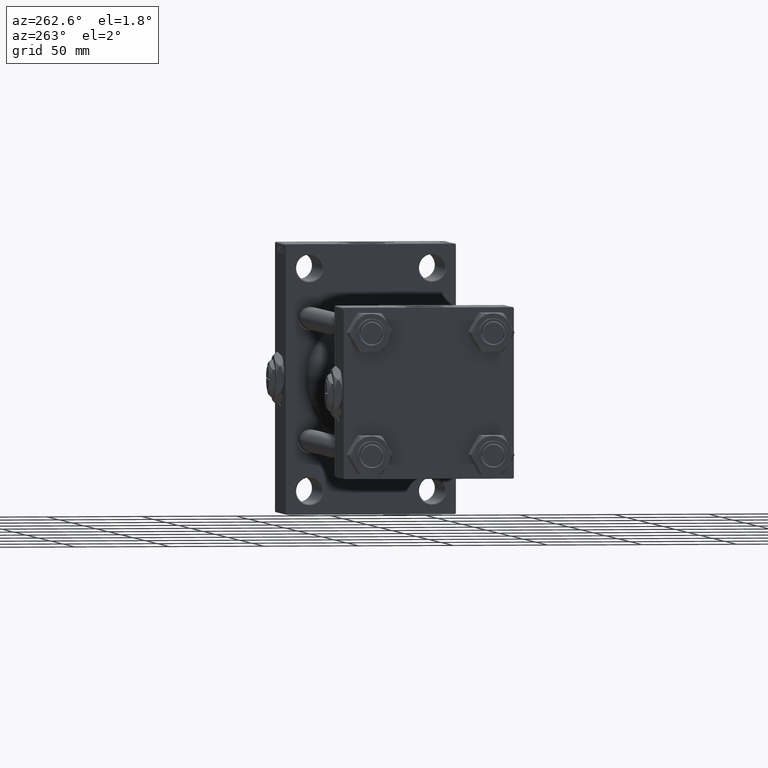
[diagram: clean part render]
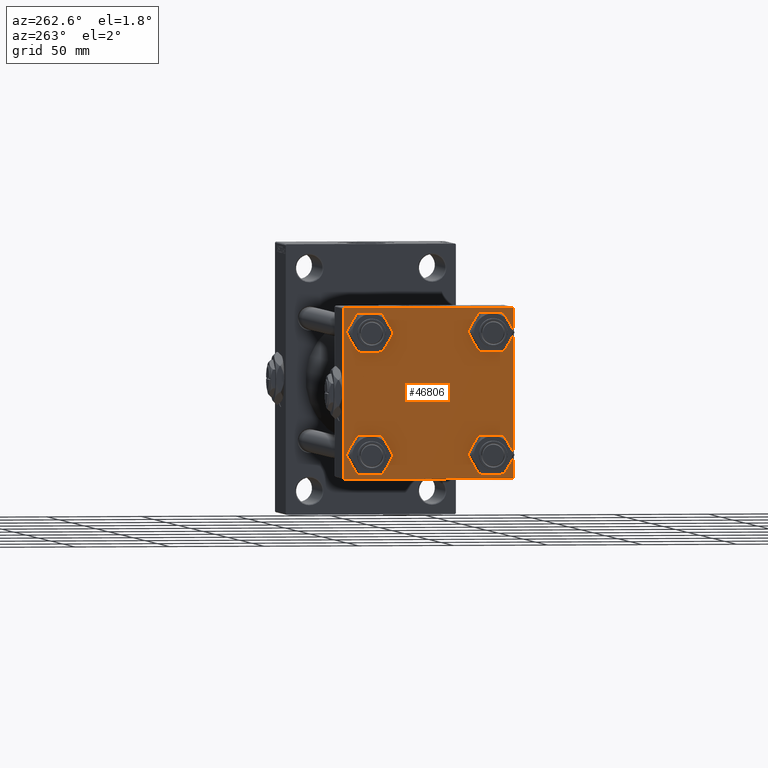
[diagram: same view with one face highlighted and labeled with its STEP entity id]
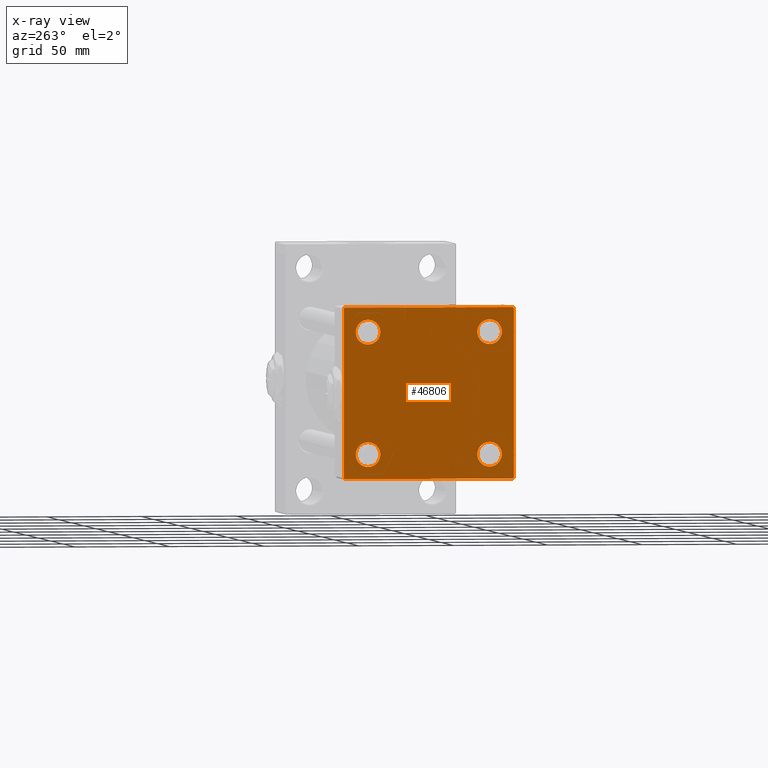
[diagram: x-ray of the same camera — body ghosted, the highlighted face saturated]
A machine part, auxiliary view. The second image highlights one B-rep face of the part: STEP entity #46806.
The next image is the same camera in x-ray: the body ghosted, the highlighted face saturated — about 0% of this face is hidden behind the body in this view.
In plain terms, the highlighted planar face has unit normal (-1, 0, 0).
Its self-contained STEP definition (entity closure, byte-faithful):
#22 = DIRECTION ( 'NONE',  ( 1.000000000000000000, -0.000000000000000000, 0.000000000000000000 ) ) ;
#142 = CARTESIAN_POINT ( 'NONE',  ( 0.000000000000000000, 32.14999999999999147, -38.64999999999998437 ) ) ;
#525 = LINE ( 'NONE', #31147, #46910 ) ;
#1086 = ORIENTED_EDGE ( 'NONE', *, *, #22798, .T. ) ;
#1949 = DIRECTION ( 'NONE',  ( -1.000000000000000000, 0.000000000000000000, -0.000000000000000000 ) ) ;
#2435 = CARTESIAN_POINT ( 'NONE',  ( 0.000000000000000000, -32.14999999999997726, -38.64999999999999147 ) ) ;
#2499 = EDGE_CURVE ( 'NONE', #23122, #22329, #7401, .T. ) ;
#3068 = EDGE_LOOP ( 'NONE', ( #13501, #12628 ) ) ;
#3329 = CARTESIAN_POINT ( 'NONE',  ( 0.000000000000000000, 44.99999999999998579, 45.00000000000001421 ) ) ;
#3406 = LINE ( 'NONE', #18608, #28569 ) ;
#3565 = ORIENTED_EDGE ( 'NONE', *, *, #5016, .T. ) ;
#4237 = CIRCLE ( 'NONE', #26550, 6.499999999999977796 ) ;
#4275 = CIRCLE ( 'NONE', #31336, 6.499999999999977796 ) ;
#4891 = CARTESIAN_POINT ( 'NONE',  ( 0.000000000000000000, -32.14999999999997726, 25.64999999999999147 ) ) ;
#5016 = EDGE_CURVE ( 'NONE', #22686, #20820, #4237, .T. ) ;
#5029 = AXIS2_PLACEMENT_3D ( 'NONE', #14021, #35958, #25243 ) ;
#5524 = CARTESIAN_POINT ( 'NONE',  ( 0.000000000000000000, 44.49999999999998579, -44.99999999999998579 ) ) ;
#6220 = DIRECTION ( 'NONE',  ( 1.000000000000000000, -0.000000000000000000, 0.000000000000000000 ) ) ;
#6262 = ORIENTED_EDGE ( 'NONE', *, *, #12572, .T. ) ;
#6744 = CARTESIAN_POINT ( 'NONE',  ( 0.000000000000000000, -32.14999999999997726, 32.15000000000001279 ) ) ;
#6845 = EDGE_CURVE ( 'NONE', #27381, #43476, #4275, .T. ) ;
#7401 = LINE ( 'NONE', #45518, #47920 ) ;
#7722 = CARTESIAN_POINT ( 'NONE',  ( 0.000000000000000000, -44.49999999999995737, 45.00000000000000000 ) ) ;
#7909 = CARTESIAN_POINT ( 'NONE',  ( 0.000000000000000000, 44.74999999999998579, -44.74999999999998579 ) ) ;
#9051 = CIRCLE ( 'NONE', #36891, 6.500000000000019540 ) ;
#9105 = CARTESIAN_POINT ( 'NONE',  ( 0.000000000000000000, 32.14999999999999147, -25.65000000000002700 ) ) ;
#9174 = FACE_BOUND ( 'NONE', #3068, .T. ) ;
#9508 = ORIENTED_EDGE ( 'NONE', *, *, #48211, .F. ) ;
#9717 = DIRECTION ( 'NONE',  ( 0.000000000000000000, 0.000000000000000000, 1.000000000000000000 ) ) ;
#10545 = AXIS2_PLACEMENT_3D ( 'NONE', #42581, #28368, #46312 ) ;
#10889 = LINE ( 'NONE', #25354, #18550 ) ;
#10974 = CIRCLE ( 'NONE', #42029, 6.499999999999977796 ) ;
#11165 = CARTESIAN_POINT ( 'NONE',  ( 0.000000000000000000, -45.00000000000000711, 44.49999999999997158 ) ) ;
#12572 = EDGE_CURVE ( 'NONE', #31445, #29556, #42043, .T. ) ;
#12628 = ORIENTED_EDGE ( 'NONE', *, *, #33053, .T. ) ;
#13398 = AXIS2_PLACEMENT_3D ( 'NONE', #24130, #1949, #43552 ) ;
#13501 = ORIENTED_EDGE ( 'NONE', *, *, #39089, .T. ) ;
#14021 = CARTESIAN_POINT ( 'NONE',  ( 0.000000000000000000, -32.14999999999997726, -32.15000000000001279 ) ) ;
#14791 = LINE ( 'NONE', #3329, #15880 ) ;
#15131 = DIRECTION ( 'NONE',  ( 0.000000000000000000, 7.709882115452476934E-17, -1.000000000000000000 ) ) ;
#15219 = ORIENTED_EDGE ( 'NONE', *, *, #47115, .T. ) ;
#15291 = VECTOR ( 'NONE', #17208, 1000.000000000000000 ) ;
#15327 = CARTESIAN_POINT ( 'NONE',  ( 0.000000000000000000, 44.99999999999998579, -44.99999999999998579 ) ) ;
#15880 = VECTOR ( 'NONE', #48427, 1000.000000000000000 ) ;
#16273 = EDGE_LOOP ( 'NONE', ( #18639, #3565 ) ) ;
#16341 = DIRECTION ( 'NONE',  ( 1.000000000000000000, -0.000000000000000000, 0.000000000000000000 ) ) ;
#16429 = CARTESIAN_POINT ( 'NONE',  ( 0.000000000000000000, -45.00000000000000000, -44.49999999999995737 ) ) ;
#16660 = FACE_OUTER_BOUND ( 'NONE', #40877, .T. ) ;
#17208 = DIRECTION ( 'NONE',  ( 0.000000000000000000, 0.000000000000000000, -1.000000000000000000 ) ) ;
#17431 = VERTEX_POINT ( 'NONE', #42980 ) ;
#18217 = CARTESIAN_POINT ( 'NONE',  ( 0.000000000000000000, 32.14999999999999147, 25.65000000000002700 ) ) ;
#18550 = VECTOR ( 'NONE', #25607, 1000.000000000000114 ) ;
#18608 = CARTESIAN_POINT ( 'NONE',  ( -0.000000000000000000, -44.75000000000029843, 44.74999999999967315 ) ) ;
#18639 = ORIENTED_EDGE ( 'NONE', *, *, #21973, .T. ) ;
#19030 = CIRCLE ( 'NONE', #23027, 6.499999999999977796 ) ;
#19107 = EDGE_CURVE ( 'NONE', #21345, #20742, #10974, .T. ) ;
#19694 = DIRECTION ( 'NONE',  ( 0.000000000000000000, -0.7071067811865474617, 0.7071067811865474617 ) ) ;
#19884 = ORIENTED_EDGE ( 'NONE', *, *, #33979, .T. ) ;
#20507 = CARTESIAN_POINT ( 'NONE',  ( 0.000000000000000000, 44.99999999999998579, -44.49999999999995737 ) ) ;
#20742 = VERTEX_POINT ( 'NONE', #2435 ) ;
#20820 = VERTEX_POINT ( 'NONE', #46926 ) ;
#21345 = VERTEX_POINT ( 'NONE', #24627 ) ;
#21973 = EDGE_CURVE ( 'NONE', #20820, #22686, #23793, .T. ) ;
#22329 = VERTEX_POINT ( 'NONE', #16429 ) ;
#22371 = VECTOR ( 'NONE', #30756, 1000.000000000000000 ) ;
#22686 = VERTEX_POINT ( 'NONE', #18217 ) ;
#22798 = EDGE_CURVE ( 'NONE', #48742, #22329, #525, .T. ) ;
#22941 = DIRECTION ( 'NONE',  ( 0.000000000000000000, 0.000000000000000000, 1.000000000000000000 ) ) ;
#23027 = AXIS2_PLACEMENT_3D ( 'NONE', #33299, #37053, #24438 ) ;
#23122 = VERTEX_POINT ( 'NONE', #11165 ) ;
#23397 = ORIENTED_EDGE ( 'NONE', *, *, #6845, .T. ) ;
#23607 = DIRECTION ( 'NONE',  ( -0.000000000000000000, -0.7071067811865474617, -0.7071067811865474617 ) ) ;
#23670 = ORIENTED_EDGE ( 'NONE', *, *, #34364, .T. ) ;
#23793 = CIRCLE ( 'NONE', #30139, 6.499999999999977796 ) ;
#24130 = CARTESIAN_POINT ( 'NONE',  ( 0.000000000000000000, 0.000000000000000000, 0.000000000000000000 ) ) ;
#24438 = DIRECTION ( 'NONE',  ( 0.000000000000000000, 0.000000000000000000, 1.000000000000000000 ) ) ;
#24617 = FACE_BOUND ( 'NONE', #16273, .T. ) ;
#24627 = CARTESIAN_POINT ( 'NONE',  ( 0.000000000000000000, -32.14999999999997726, -25.65000000000003411 ) ) ;
#25084 = VERTEX_POINT ( 'NONE', #4891 ) ;
#25243 = DIRECTION ( 'NONE',  ( 0.000000000000000000, 0.000000000000000000, 1.000000000000000000 ) ) ;
#25354 = CARTESIAN_POINT ( 'NONE',  ( 0.000000000000000000, 44.74999999999999289, 44.74999999999999289 ) ) ;
#25607 = DIRECTION ( 'NONE',  ( 0.000000000000000000, 0.7071067811865474617, -0.7071067811865474617 ) ) ;
#26550 = AXIS2_PLACEMENT_3D ( 'NONE', #45357, #22, #22941 ) ;
#27381 = VERTEX_POINT ( 'NONE', #142 ) ;
#28088 = CIRCLE ( 'NONE', #5029, 6.499999999999977796 ) ;
#28368 = DIRECTION ( 'NONE',  ( 1.000000000000000000, -0.000000000000000000, 0.000000000000000000 ) ) ;
#28383 = EDGE_CURVE ( 'NONE', #29556, #48742, #34238, .T. ) ;
#28408 = CARTESIAN_POINT ( 'NONE',  ( 0.000000000000000000, -32.14999999999997726, 38.65000000000003411 ) ) ;
#28526 = EDGE_LOOP ( 'NONE', ( #33640, #23670 ) ) ;
#28569 = VECTOR ( 'NONE', #37788, 1000.000000000000114 ) ;
#28660 = LINE ( 'NONE', #36855, #15291 ) ;
#29556 = VERTEX_POINT ( 'NONE', #5524 ) ;
#29657 = DIRECTION ( 'NONE',  ( 1.000000000000000000, -0.000000000000000000, 0.000000000000000000 ) ) ;
#30139 = AXIS2_PLACEMENT_3D ( 'NONE', #46198, #34970, #41712 ) ;
#30756 = DIRECTION ( 'NONE',  ( 0.000000000000000000, -1.000000000000000000, -1.541976423090495633E-16 ) ) ;
#31134 = VERTEX_POINT ( 'NONE', #28408 ) ;
#31147 = CARTESIAN_POINT ( 'NONE',  ( 0.000000000000000000, -44.74999999999998579, -44.74999999999998579 ) ) ;
#31336 = AXIS2_PLACEMENT_3D ( 'NONE', #36479, #16341, #35747 ) ;
#31445 = VERTEX_POINT ( 'NONE', #20507 ) ;
#31854 = EDGE_CURVE ( 'NONE', #46843, #31445, #28660, .T. ) ;
#31895 = ORIENTED_EDGE ( 'NONE', *, *, #44243, .T. ) ;
#32143 = ORIENTED_EDGE ( 'NONE', *, *, #2499, .F. ) ;
#33053 = EDGE_CURVE ( 'NONE', #25084, #31134, #35221, .T. ) ;
#33299 = CARTESIAN_POINT ( 'NONE',  ( 0.000000000000000000, 32.14999999999999147, -32.15000000000000568 ) ) ;
#33640 = ORIENTED_EDGE ( 'NONE', *, *, #19107, .T. ) ;
#33806 = VECTOR ( 'NONE', #23607, 1000.000000000000114 ) ;
#33979 = EDGE_CURVE ( 'NONE', #17431, #46843, #10889, .T. ) ;
#34238 = LINE ( 'NONE', #15327, #22371 ) ;
#34364 = EDGE_CURVE ( 'NONE', #20742, #21345, #28088, .T. ) ;
#34970 = DIRECTION ( 'NONE',  ( 1.000000000000000000, -0.000000000000000000, 0.000000000000000000 ) ) ;
#35221 = CIRCLE ( 'NONE', #10545, 6.500000000000019540 ) ;
#35326 = FACE_BOUND ( 'NONE', #46640, .T. ) ;
#35747 = DIRECTION ( 'NONE',  ( 0.000000000000000000, 0.000000000000000000, 1.000000000000000000 ) ) ;
#35958 = DIRECTION ( 'NONE',  ( 1.000000000000000000, -0.000000000000000000, 0.000000000000000000 ) ) ;
#36310 = FACE_BOUND ( 'NONE', #28526, .T. ) ;
#36479 = CARTESIAN_POINT ( 'NONE',  ( 0.000000000000000000, 32.14999999999999147, -32.15000000000000568 ) ) ;
#36611 = CARTESIAN_POINT ( 'NONE',  ( 0.000000000000000000, -32.14999999999997726, -32.15000000000001279 ) ) ;
#36855 = CARTESIAN_POINT ( 'NONE',  ( 0.000000000000000000, 44.99999999999998579, 45.00000000000001421 ) ) ;
#36891 = AXIS2_PLACEMENT_3D ( 'NONE', #6744, #29657, #40628 ) ;
#37053 = DIRECTION ( 'NONE',  ( 1.000000000000000000, -0.000000000000000000, 0.000000000000000000 ) ) ;
#37788 = DIRECTION ( 'NONE',  ( -0.000000000000000000, 0.7071067811865425767, 0.7071067811865524577 ) ) ;
#38126 = ORIENTED_EDGE ( 'NONE', *, *, #28383, .T. ) ;
#39071 = PLANE ( 'NONE',  #13398 ) ;
#39089 = EDGE_CURVE ( 'NONE', #31134, #25084, #9051, .T. ) ;
#39319 = CARTESIAN_POINT ( 'NONE',  ( 0.000000000000000000, 44.99999999999998579, 44.50000000000001421 ) ) ;
#40628 = DIRECTION ( 'NONE',  ( 0.000000000000000000, 0.000000000000000000, 1.000000000000000000 ) ) ;
#40877 = EDGE_LOOP ( 'NONE', ( #45346, #6262, #38126, #1086, #32143, #15219, #9508, #19884 ) ) ;
#41055 = CARTESIAN_POINT ( 'NONE',  ( 0.000000000000000000, -44.49999999999995737, -45.00000000000000000 ) ) ;
#41712 = DIRECTION ( 'NONE',  ( 0.000000000000000000, 0.000000000000000000, 1.000000000000000000 ) ) ;
#42029 = AXIS2_PLACEMENT_3D ( 'NONE', #36611, #6220, #9717 ) ;
#42043 = LINE ( 'NONE', #7909, #33806 ) ;
#42581 = CARTESIAN_POINT ( 'NONE',  ( 0.000000000000000000, -32.14999999999997726, 32.15000000000001279 ) ) ;
#42980 = CARTESIAN_POINT ( 'NONE',  ( 0.000000000000000000, 44.49999999999998579, 45.00000000000001421 ) ) ;
#43476 = VERTEX_POINT ( 'NONE', #9105 ) ;
#43552 = DIRECTION ( 'NONE',  ( -0.000000000000000000, 0.000000000000000000, 1.000000000000000000 ) ) ;
#44243 = EDGE_CURVE ( 'NONE', #43476, #27381, #19030, .T. ) ;
#45346 = ORIENTED_EDGE ( 'NONE', *, *, #31854, .T. ) ;
#45357 = CARTESIAN_POINT ( 'NONE',  ( 0.000000000000000000, 32.14999999999999147, 32.15000000000000568 ) ) ;
#45518 = CARTESIAN_POINT ( 'NONE',  ( 0.000000000000000000, -45.00000000000000711, 45.00000000000000000 ) ) ;
#46198 = CARTESIAN_POINT ( 'NONE',  ( 0.000000000000000000, 32.14999999999999147, 32.15000000000000568 ) ) ;
#46312 = DIRECTION ( 'NONE',  ( 0.000000000000000000, 0.000000000000000000, 1.000000000000000000 ) ) ;
#46640 = EDGE_LOOP ( 'NONE', ( #31895, #23397 ) ) ;
#46806 = ADVANCED_FACE ( 'NONE', ( #9174, #36310, #35326, #24617, #16660 ), #39071, .T. ) ;
#46843 = VERTEX_POINT ( 'NONE', #39319 ) ;
#46910 = VECTOR ( 'NONE', #19694, 1000.000000000000114 ) ;
#46926 = CARTESIAN_POINT ( 'NONE',  ( 0.000000000000000000, 32.14999999999999147, 38.64999999999999147 ) ) ;
#47115 = EDGE_CURVE ( 'NONE', #23122, #48536, #3406, .T. ) ;
#47920 = VECTOR ( 'NONE', #15131, 1000.000000000000000 ) ;
#48211 = EDGE_CURVE ( 'NONE', #17431, #48536, #14791, .T. ) ;
#48427 = DIRECTION ( 'NONE',  ( 0.000000000000000000, -1.000000000000000000, -1.541976423090495387E-16 ) ) ;
#48536 = VERTEX_POINT ( 'NONE', #7722 ) ;
#48742 = VERTEX_POINT ( 'NONE', #41055 ) ;